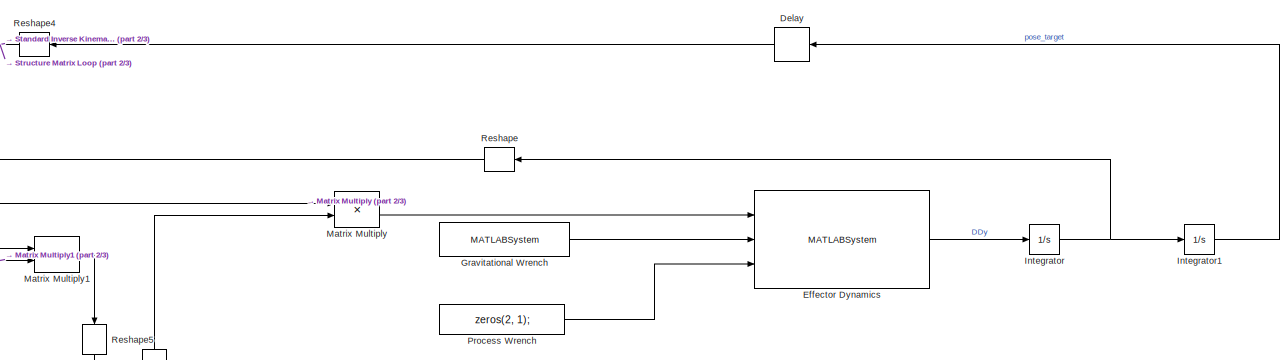
[diagram: root canvas - part 1/3, top right region]
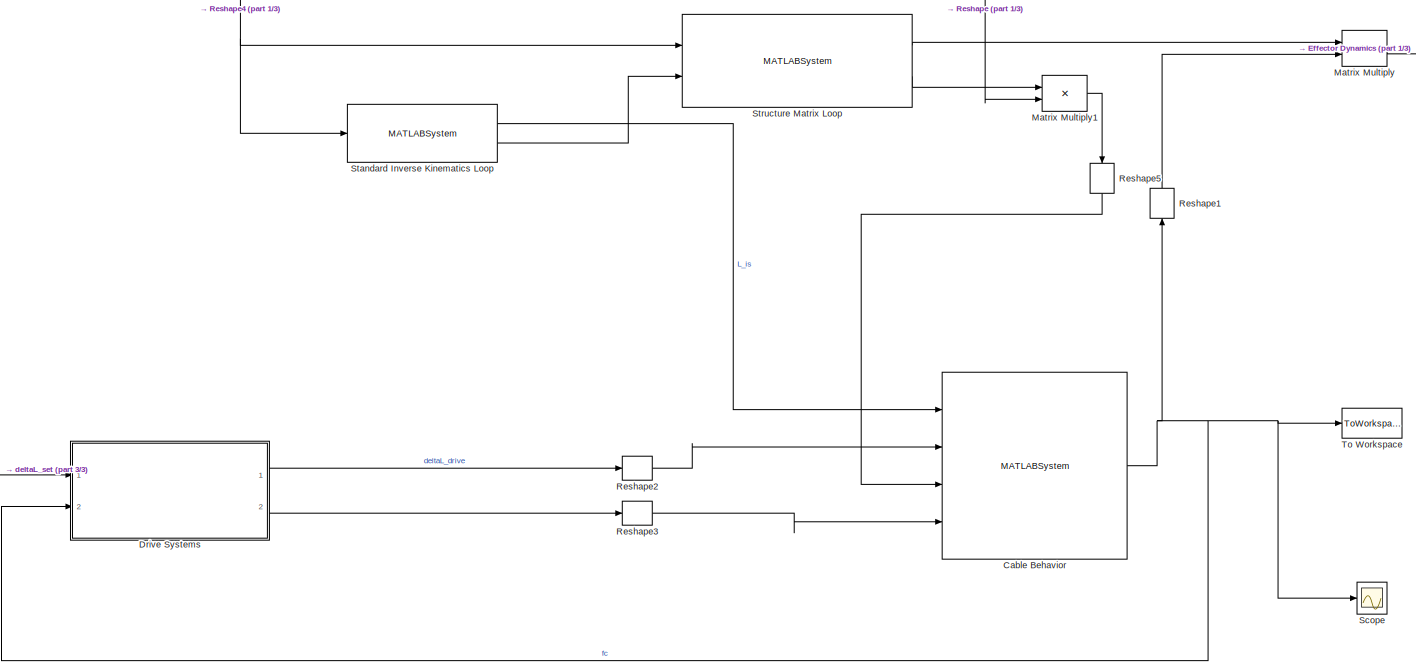
[diagram: root canvas - part 2/3, center side, full height]
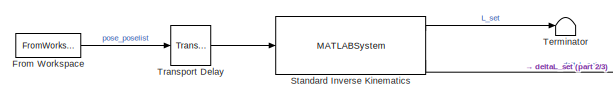
[diagram: root canvas - part 3/3, bottom left region]
MODEL slx_5f9787dd0eac
KIND model
CONFIG AbsTol = auto
CONFIG EnableMultiTasking = off
CONFIG FixedStep = stepsize
CONFIG InitFcn = close all\nclear\nSimulink.sdi.clear\nrun scripts\initModel.m
CONFIG MaxStep = 1e-3
CONFIG MinStep = auto
CONFIG RelTol = 1e-3
CONFIG SampleTimeConstraint = Unconstrained
CONFIG Solver = ode3
CONFIG SolverName = ode3
CONFIG StartFcn = tic
CONFIG StartTime = 0.0
CONFIG StopFcn = computation_time = toc;
CONFIG StopTime = tend
BLOCK [MATLABSystem] Cable Behavior
  Elasticity = Cable_Elasticity
  Initial_Length = Cable_InitialLength
  MaskDisplay = disp(['2T' char(10) 'Cable Dynamics' char(10) 'Linear Elasticity']);\nport_label('input',1,'l');\nport_label('input',2,'q');\nport_label('input',3,'Dl');\nport_label('input',4,'Dq');\nport_label('output',1,'fc');
  MaskType = cable.linearelasticity
  Model = spring-damper
  Ports = [4, 1]
  Reference_Length = Cable_ReferenceLength
  SimulateUsing = Interpreted execution
  System = cable.linearelasticity
  Viscosity = Cable_Viscosity
BLOCK [Delay] Delay
  DelayLength = 1
  InputPortMap = u0
  Ports = [1, 1]
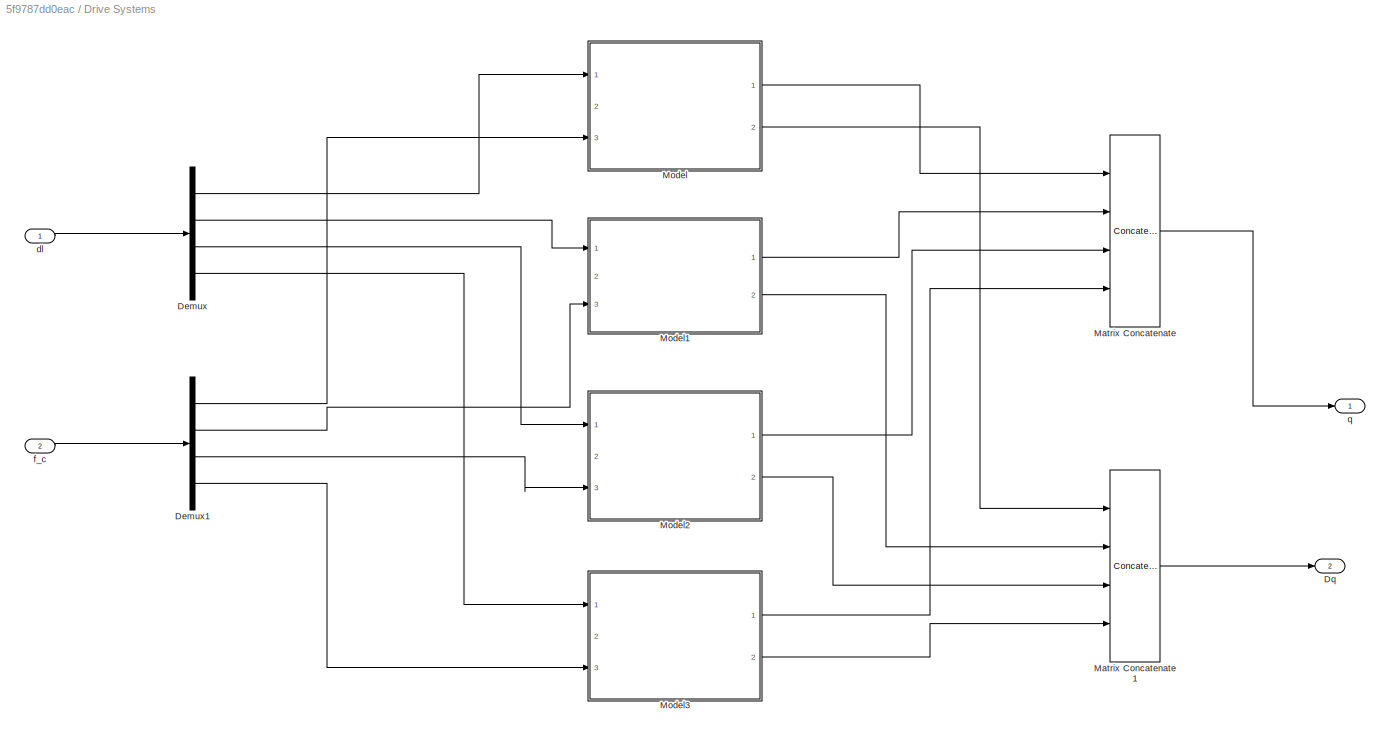
BLOCK [SubSystem] Drive Systems
  Ports = [2, 2]
  RequestExecContextInheritance = off
BLOCK [Demux] Drive Systems/Demux
  DisplayOption = bar
  Ports = [1, 4]
BLOCK [Demux] Drive Systems/Demux1
  DisplayOption = bar
  Ports = [1, 4]
BLOCK [Outport] Drive Systems/Dq
  IconDisplay = Port number
  Port = 2
BLOCK [Concatenate] Drive Systems/Matrix Concatenate
  ConcatenateDimension = 2
  NumInputs = 4
  Ports = [4, 1]
BLOCK [Concatenate] Drive Systems/Matrix Concatenate1
  ConcatenateDimension = 2
  NumInputs = 4
  Ports = [4, 1]
BLOCK [ModelReference] Drive Systems/Model
  ModelNameDialog = DriveSystem.slx
  ModelReferenceVersion = 1.11
  Ports = [3, 2]
BLOCK [ModelReference] Drive Systems/Model1
  ModelNameDialog = DriveSystem.slx
  ModelReferenceVersion = 1.11
  Ports = [3, 2]
BLOCK [ModelReference] Drive Systems/Model2
  ModelNameDialog = DriveSystem.slx
  ModelReferenceVersion = 1.11
  Ports = [3, 2]
BLOCK [ModelReference] Drive Systems/Model3
  ModelNameDialog = DriveSystem.slx
  ModelReferenceVersion = 1.11
  Ports = [3, 2]
BLOCK [Inport] Drive Systems/dl
  IconDisplay = Port number
BLOCK [Inport] Drive Systems/f_c
  IconDisplay = Port number
  Port = 2
BLOCK [Outport] Drive Systems/q
  IconDisplay = Port number
BLOCK [MATLABSystem] Effector Dynamics
  MaskDisplay = disp(['2T' char(10) 'Platform Dynamics']);\nport_label('input',1,'wc');\nport_label('input',2,'wg');\nport_label('input',3,'wp');\nport_label('output',1,'DDy');
  MaskType = dynamics.platform
  Ports = [3, 1]
  SimulateUsing = Code generation
  System = dynamics.platform
  Weight = PlatformWeight
BLOCK [FromWorkspace] From Workspace
  SampleTime = 0
  VariableName = in_poselist
  ZeroCross = on
BLOCK [MATLABSystem] Gravitational Wrench
  Direction = Y-
  Gravity = 9.81
  MaskDisplay = disp(['2T' char(10) 'Gravitational Wrench']);\nport_label('output',1,'wg');
  MaskType = dynamics.gravity
  Ports = [0, 1]
  SimulateUsing = Code generation
  System = dynamics.gravity
  Weight = PlatformWeight
BLOCK [Integrator] Integrator
  InitialCondition = Dy0
  Ports = [1, 1]
BLOCK [Integrator] Integrator1
  InitialCondition = y0
  Ports = [1, 1]
BLOCK [Product] Matrix Multiply
  InputSameDT = off
  Multiplication = Matrix(*)
  OutDataTypeStr = Inherit: Inherit via internal rule
  Ports = [2, 1]
  RndMeth = Floor
  SaturateOnIntegerOverflow = off
BLOCK [Product] Matrix Multiply1
  InputSameDT = off
  Multiplication = Matrix(*)
  OutDataTypeStr = Inherit: Inherit via internal rule
  Ports = [2, 1]
  RndMeth = Floor
  SaturateOnIntegerOverflow = off
BLOCK [Constant] Process Wrench
  Value = zeros(2, 1);
  VectorParams1D = off
BLOCK [Reshape] Reshape
  OutputDimensionality = Column vector (2-D)
  Ports = [1, 1]
BLOCK [Reshape] Reshape1
  OutputDimensionality = Column vector (2-D)
  Ports = [1, 1]
BLOCK [Reshape] Reshape2
  OutputDimensionality = Row vector (2-D)
  Ports = [1, 1]
BLOCK [Reshape] Reshape3
  OutputDimensionality = Row vector (2-D)
  Ports = [1, 1]
BLOCK [Reshape] Reshape4
  OutputDimensionality = Column vector (2-D)
  Ports = [1, 1]
BLOCK [Reshape] Reshape5
  OutputDimensionality = Row vector (2-D)
  Ports = [1, 1]
BLOCK [Scope] Scope
  Floating = off
  NumInputPorts = 1
  Ports = [1]
  ScopeSpecificationString = Simulink.scopes.TimeScopeBlockCfg('CurrentConfiguration', extmgr.ConfigurationSet(extmgr.Configuration('Core','General UI',true),extmgr.Configuration('Core','Source UI',true),extmgr.Configuration('Sources','WiredSimulink',true),extmgr.Configuration('Visuals','Time Domain',true,'SerializedDisplays',{struct('MinYLimReal','410.46508','MaxYLimReal','600.42803','YLabelReal','','MinYLimMag','410.46508',...<+2269ch>
BLOCK [MATLABSystem] Standard Inverse Kinematics
  CableOffset = Cable_Offset
  DeltaLength = on
  Frame = FrameAnchors
  InitialPose = zeros( 1, 2 )
  MaskDisplay = disp('ik.standard');\nport_label('input',1,'p');\nport_label('output',1,'l');\nport_label('output',2,'u');\nport_label('output',3,'dl');
  MaskType = ik.standard
  MotionPattern = 2T
  Platform = zeros( 3, 1 )
  Ports = [1, 3]
  PulleyAngles = off
  System = ik.standard
  UnitVectors = on
BLOCK [MATLABSystem] Standard Inverse Kinematics Loop
  CableOffset = Cable_Offset
  DeltaLength = off
  Frame = FrameAnchors
  InitialPose = zeros( 1, 2 )
  MaskDisplay = disp('ik.standard');\nport_label('input',1,'p');\nport_label('output',1,'l');\nport_label('output',2,'u');
  MaskType = ik.standard
  MotionPattern = 2T
  Platform = zeros( 3, 1 )
  Ports = [1, 2]
  PulleyAngles = off
  System = ik.standard
  UnitVectors = on
BLOCK [MATLABSystem] Structure Matrix Loop
  Jacobian = on
  MaskDisplay = disp('sm.structurematrix');\nport_label('input',1,'p');\nport_label('input',2,'u');\nport_label('output',1,'At');\nport_label('output',2,'J');
  MaskType = sm.structurematrix
  MotionPattern = 2T
  Nullspace = off
  Platform = zeros( 3, 1 )
  Ports = [2, 2]
  System = sm.structurematrix
BLOCK [Terminator] Terminator
BLOCK [ToWorkspace] To Workspace
  FixptAsFi = on
  MaxDataPoints = inf
  Ports = [1]
  SampleTime = -1
  Save2DSignal = 3-D array (concatenate along third dimension)
  SaveFormat = Structure With Time
  VariableName = out_forces
BLOCK [TransportDelay] Transport Delay
  Ports = [1, 1]
NET Cable Behavior:1 -> Drive Systems:2, Reshape1:1, Scope:1, To Workspace:1
LINE Delay:1 -> Reshape4:1
LINE Drive Systems/Demux1:1 -> Drive Systems/Model:3
LINE Drive Systems/Demux1:2 -> Drive Systems/Model1:3
LINE Drive Systems/Demux1:3 -> Drive Systems/Model2:3
LINE Drive Systems/Demux1:4 -> Drive Systems/Model3:3
LINE Drive Systems/Demux:1 -> Drive Systems/Model:1
LINE Drive Systems/Demux:2 -> Drive Systems/Model1:1
LINE Drive Systems/Demux:3 -> Drive Systems/Model2:1
LINE Drive Systems/Demux:4 -> Drive Systems/Model3:1
LINE Drive Systems/Matrix Concatenate1:1 -> Drive Systems/Dq:1
LINE Drive Systems/Matrix Concatenate:1 -> Drive Systems/q:1
LINE Drive Systems/Model1:1 -> Drive Systems/Matrix Concatenate:2
LINE Drive Systems/Model1:2 -> Drive Systems/Matrix Concatenate1:2
LINE Drive Systems/Model2:1 -> Drive Systems/Matrix Concatenate:3
LINE Drive Systems/Model2:2 -> Drive Systems/Matrix Concatenate1:3
LINE Drive Systems/Model3:1 -> Drive Systems/Matrix Concatenate:4
LINE Drive Systems/Model3:2 -> Drive Systems/Matrix Concatenate1:4
LINE Drive Systems/Model:1 -> Drive Systems/Matrix Concatenate:1
LINE Drive Systems/Model:2 -> Drive Systems/Matrix Concatenate1:1
LINE Drive Systems/dl:1 -> Drive Systems/Demux:1
LINE Drive Systems/f_c:1 -> Drive Systems/Demux1:1
LINE Drive Systems:1 -> Reshape2:1
LINE Drive Systems:2 -> Reshape3:1
LINE Effector Dynamics:1 -> Integrator:1
LINE From Workspace:1 -> Transport Delay:1
LINE Gravitational Wrench:1 -> Effector Dynamics:2
LINE Integrator1:1 -> Delay:1
NET Integrator:1 -> Integrator1:1, Reshape:1
LINE Matrix Multiply1:1 -> Reshape5:1
LINE Matrix Multiply:1 -> Effector Dynamics:1
LINE Process Wrench:1 -> Effector Dynamics:3
LINE Reshape1:1 -> Matrix Multiply:2
LINE Reshape2:1 -> Cable Behavior:2
LINE Reshape3:1 -> Cable Behavior:4
NET Reshape4:1 -> Standard Inverse Kinematics Loop:1, Structure Matrix Loop:1
LINE Reshape5:1 -> Cable Behavior:3
LINE Reshape:1 -> Matrix Multiply1:2
LINE Standard Inverse Kinematics Loop:1 -> Cable Behavior:1
LINE Standard Inverse Kinematics Loop:2 -> Structure Matrix Loop:2
LINE Standard Inverse Kinematics:1 -> Terminator:1
LINE Standard Inverse Kinematics:3 -> Drive Systems:1
LINE Structure Matrix Loop:1 -> Matrix Multiply:1
LINE Structure Matrix Loop:2 -> Matrix Multiply1:1
LINE Transport Delay:1 -> Standard Inverse Kinematics:1
note: NET lines group one-source signal fan-out (src -> all destinations, sorted); 1:1 wires keep LINE
